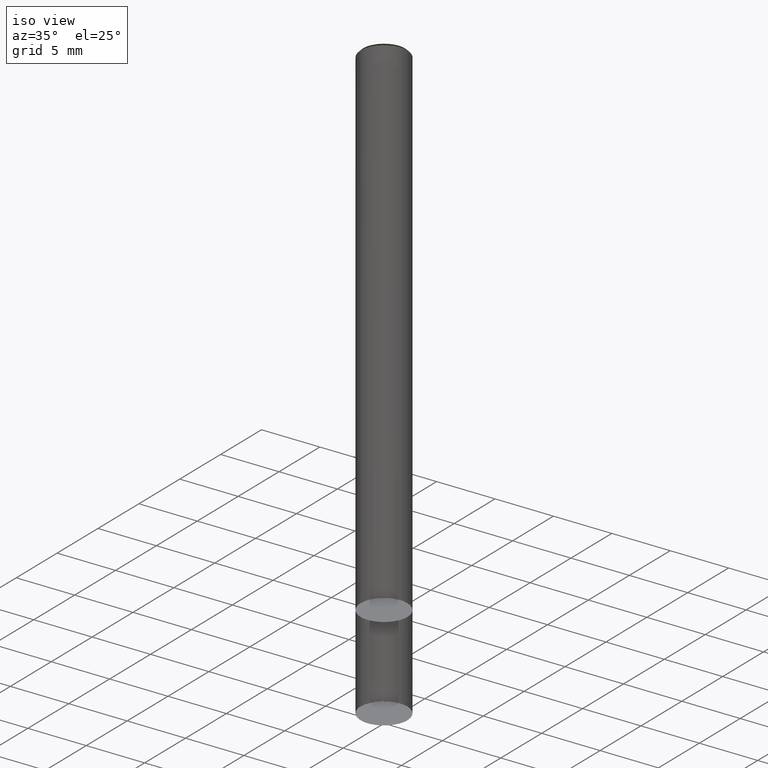
[diagram: clean part render]
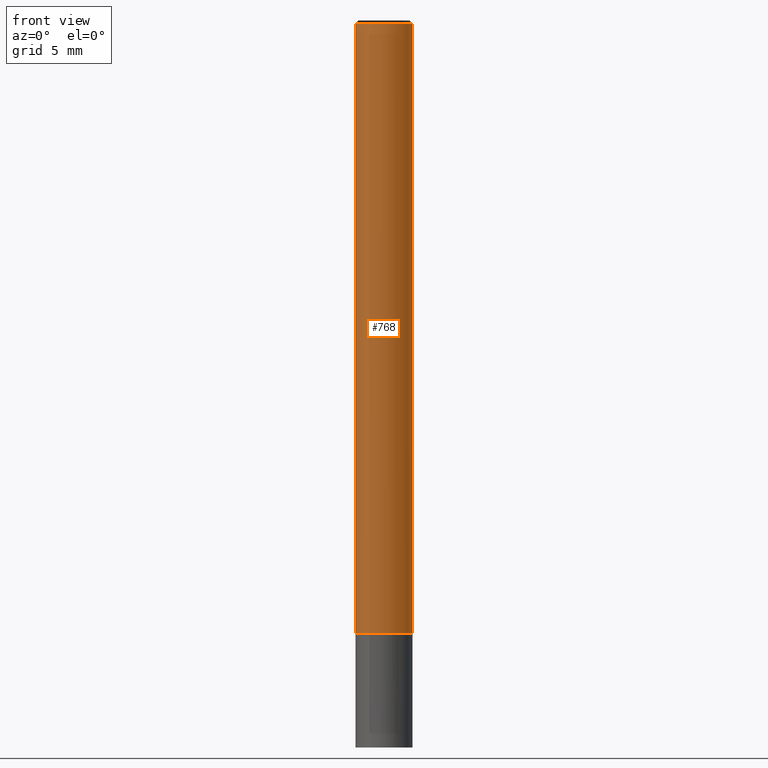
[diagram: tour spotlight — one face highlighted and labeled with its STEP entity id]
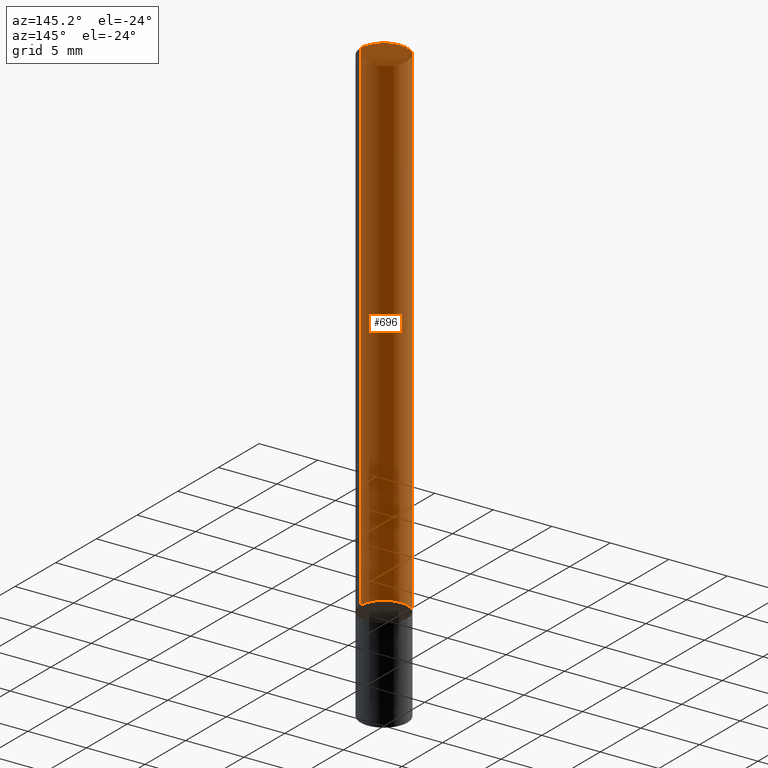
[diagram: tour spotlight — one face highlighted and labeled with its STEP entity id]
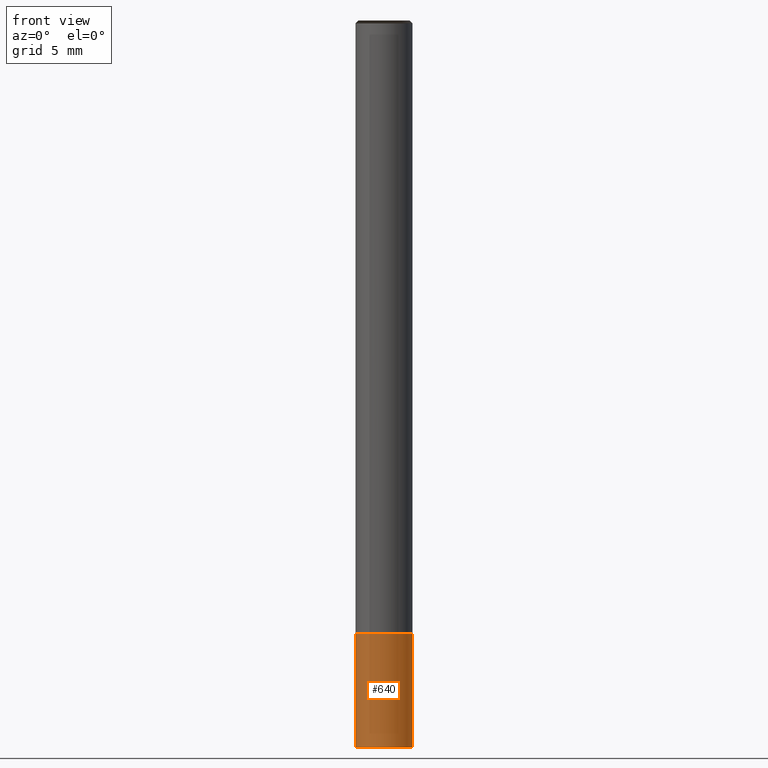
[diagram: tour spotlight — one face highlighted and labeled with its STEP entity id]
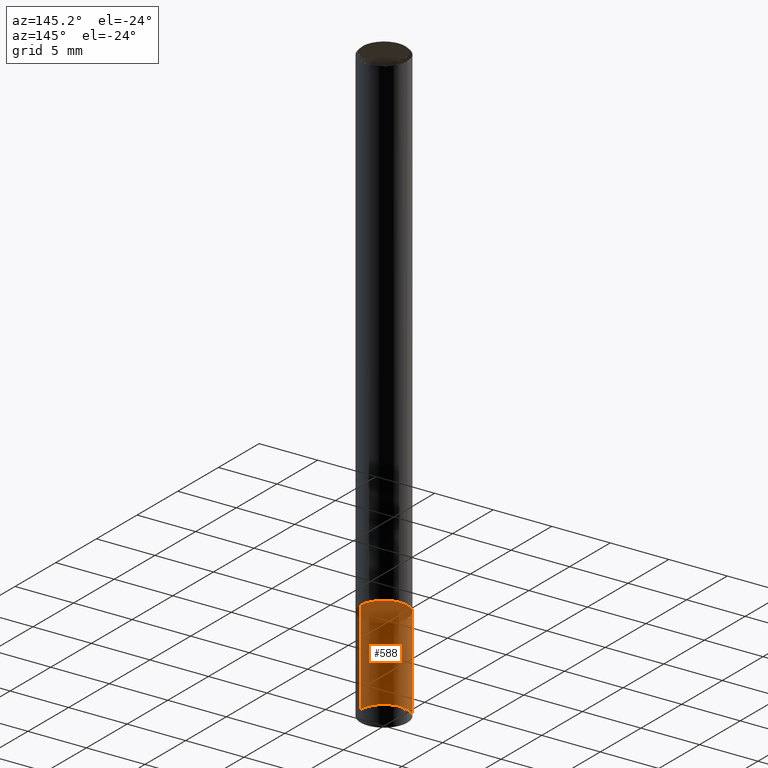
[diagram: tour spotlight — one face highlighted and labeled with its STEP entity id]
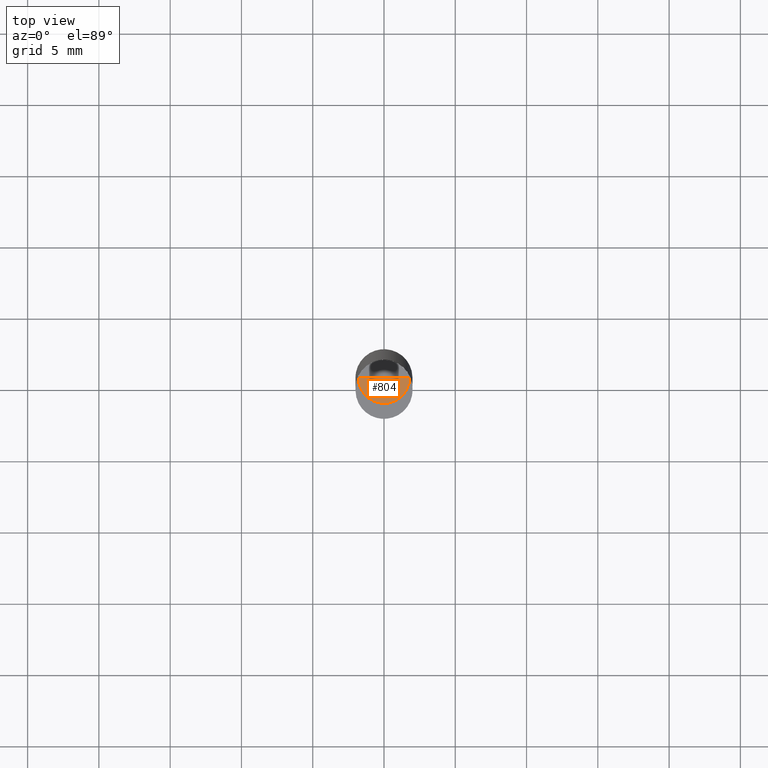
[diagram: tour spotlight — one face highlighted and labeled with its STEP entity id]
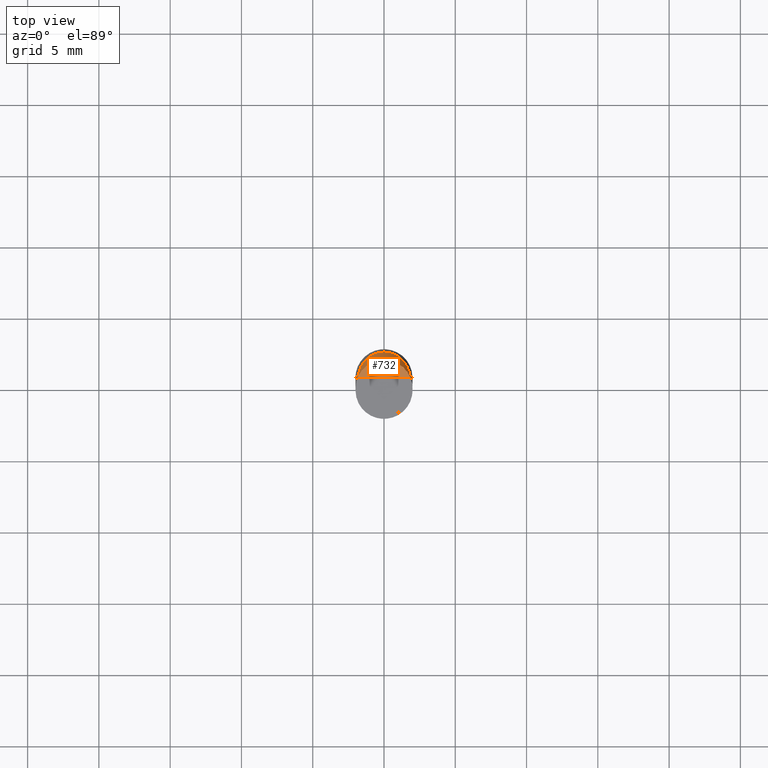
[diagram: tour spotlight — one face highlighted and labeled with its STEP entity id]
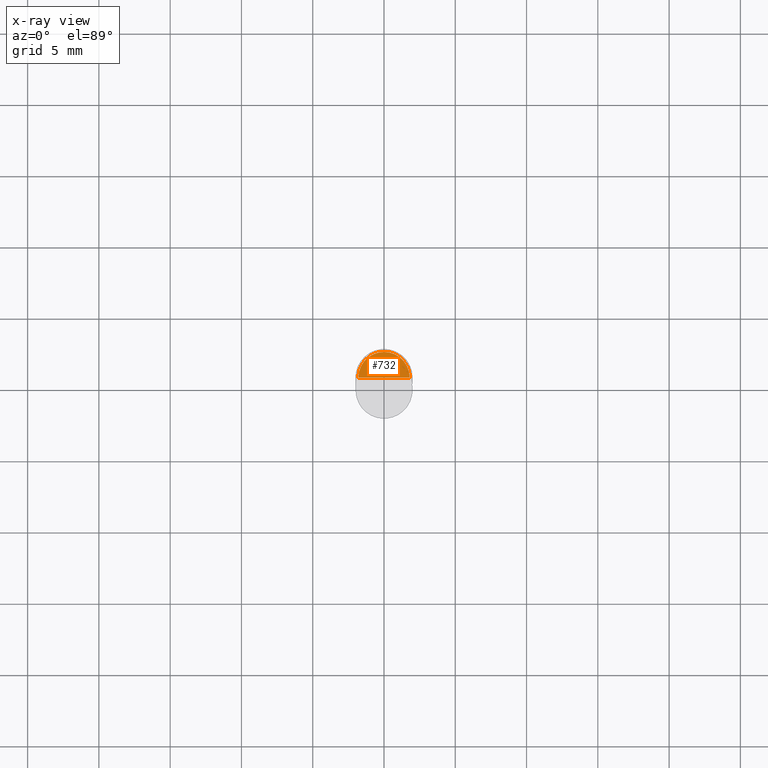
[diagram: x-ray of the same camera — body ghosted, this tour face saturated]
A machine part: a face-by-face anatomy tour. The part has 14 B-rep faces; the first image is the clean iso view, then the 6 largest visible faces are spotlighted one at a time (largest first), each with its STEP entity span.

Face 1 — front view, entity #768. In plain terms, the highlighted face is a freeform B-spline surface patch.
Definition (entity closure, byte-faithful):
#519=CARTESIAN_POINT('',(2.0,0.0,0.0));
#523=CARTESIAN_POINT('',(-2.0,0.0,0.0));
#527=CARTESIAN_POINT('',(-2.0,-2.0,0.0));
#528=CARTESIAN_POINT('',(0.0,-2.0,0.0));
#529=CARTESIAN_POINT('',(2.0,-2.0,0.0));
#530=CARTESIAN_POINT('',(2.0,0.0,42.8));
#534=CARTESIAN_POINT('',(-2.0,0.0,42.8));
#541=CARTESIAN_POINT('',(-2.0,-2.0,42.8));
#542=CARTESIAN_POINT('',(0.0,-2.0,42.8));
#543=CARTESIAN_POINT('',(2.0,-2.0,42.8));
#749=(
BOUNDED_SURFACE()
B_SPLINE_SURFACE(1,2,(
(#523,#527,#528,#529,#519),
(#534,#541,#542,#543,#530)
), .UNSPECIFIED.,.F.,.F.,.F.)
B_SPLINE_SURFACE_WITH_KNOTS((2,2),(3,2,3),(
0.0,1.0),(
0.0,0.5,1.0), .UNSPECIFIED.)
GEOMETRIC_REPRESENTATION_ITEM()
RATIONAL_B_SPLINE_SURFACE(((1.0,0.707106781187,1.0,0.707106781187,1.0),
(1.0,0.707106781187,1.0,0.707106781187,1.0)
))
REPRESENTATION_ITEM('')
SURFACE()
);
#750=(
BOUNDED_CURVE()
B_SPLINE_CURVE(2,(#519,#529,#528,#527,#523),.UNSPECIFIED.,.F.,.F.)
B_SPLINE_CURVE_WITH_KNOTS((3,2,3),
(0.0,0.5,1.0),.UNSPECIFIED.)
CURVE()
GEOMETRIC_REPRESENTATION_ITEM()
RATIONAL_B_SPLINE_CURVE((1.0,0.707106781187,1.0,0.707106781187,1.0))
REPRESENTATION_ITEM('')
);
#751=(
BOUNDED_CURVE()
B_SPLINE_CURVE(1,(#523,#534),.UNSPECIFIED.,.F.,.F.)
B_SPLINE_CURVE_WITH_KNOTS((2,2),
(0.0,1.0),.UNSPECIFIED.)
CURVE()
GEOMETRIC_REPRESENTATION_ITEM()
RATIONAL_B_SPLINE_CURVE((1.0,1.0))
REPRESENTATION_ITEM('')
);
#752=(
BOUNDED_CURVE()
B_SPLINE_CURVE(2,(#534,#541,#542,#543,#530),.UNSPECIFIED.,.F.,.F.)
B_SPLINE_CURVE_WITH_KNOTS((3,2,3),
(0.0,0.5,1.0),.UNSPECIFIED.)
CURVE()
GEOMETRIC_REPRESENTATION_ITEM()
RATIONAL_B_SPLINE_CURVE((1.0,0.707106781187,1.0,0.707106781187,1.0))
REPRESENTATION_ITEM('')
);
#753=(
BOUNDED_CURVE()
B_SPLINE_CURVE(1,(#530,#519),.UNSPECIFIED.,.F.,.F.)
B_SPLINE_CURVE_WITH_KNOTS((2,2),
(0.0,1.0),.UNSPECIFIED.)
CURVE()
GEOMETRIC_REPRESENTATION_ITEM()
RATIONAL_B_SPLINE_CURVE((1.0,1.0))
REPRESENTATION_ITEM('')
);
#754=VERTEX_POINT('',#519);
#755=VERTEX_POINT('',#523);
#756=VERTEX_POINT('',#530);
#757=VERTEX_POINT('',#534);
#758=EDGE_CURVE('',#754,#755,#750,.T.);
#759=EDGE_CURVE('',#755,#757,#751,.T.);
#760=EDGE_CURVE('',#757,#756,#752,.T.);
#761=EDGE_CURVE('',#756,#754,#753,.T.);
#762=ORIENTED_EDGE('',*,*,#758,.T.);
#763=ORIENTED_EDGE('',*,*,#759,.T.);
#764=ORIENTED_EDGE('',*,*,#760,.T.);
#765=ORIENTED_EDGE('',*,*,#761,.T.);
#766=EDGE_LOOP('',(#762,#763,#764,#765));
#767=FACE_OUTER_BOUND('',#766,.T.);
#768=ADVANCED_FACE('',(#767),#749,.T.);

Face 2 — auxiliary view, entity #696. In plain terms, the highlighted face is a freeform B-spline surface patch.
Definition (entity closure, byte-faithful):
#519=CARTESIAN_POINT('',(2.0,0.0,0.0));
#520=CARTESIAN_POINT('',(2.0,2.0,0.0));
#521=CARTESIAN_POINT('',(0.0,2.0,0.0));
#522=CARTESIAN_POINT('',(-2.0,2.0,0.0));
#523=CARTESIAN_POINT('',(-2.0,0.0,0.0));
#530=CARTESIAN_POINT('',(2.0,0.0,42.8));
#531=CARTESIAN_POINT('',(2.0,2.0,42.8));
#532=CARTESIAN_POINT('',(0.0,2.0,42.8));
#533=CARTESIAN_POINT('',(-2.0,2.0,42.8));
#534=CARTESIAN_POINT('',(-2.0,0.0,42.8));
#677=(
BOUNDED_SURFACE()
B_SPLINE_SURFACE(1,2,(
(#519,#520,#521,#522,#523),
(#530,#531,#532,#533,#534)
), .UNSPECIFIED.,.F.,.F.,.F.)
B_SPLINE_SURFACE_WITH_KNOTS((2,2),(3,2,3),(
0.0,1.0),(
0.0,0.5,1.0), .UNSPECIFIED.)
GEOMETRIC_REPRESENTATION_ITEM()
RATIONAL_B_SPLINE_SURFACE(((1.0,0.707106781187,1.0,0.707106781187,1.0),
(1.0,0.707106781187,1.0,0.707106781187,1.0)
))
REPRESENTATION_ITEM('')
SURFACE()
);
#678=(
BOUNDED_CURVE()
B_SPLINE_CURVE(2,(#523,#522,#521,#520,#519),.UNSPECIFIED.,.F.,.F.)
B_SPLINE_CURVE_WITH_KNOTS((3,2,3),
(0.0,0.5,1.0),.UNSPECIFIED.)
CURVE()
GEOMETRIC_REPRESENTATION_ITEM()
RATIONAL_B_SPLINE_CURVE((1.0,0.707106781187,1.0,0.707106781187,1.0))
REPRESENTATION_ITEM('')
);
#679=(
BOUNDED_CURVE()
B_SPLINE_CURVE(1,(#519,#530),.UNSPECIFIED.,.F.,.F.)
B_SPLINE_CURVE_WITH_KNOTS((2,2),
(0.0,1.0),.UNSPECIFIED.)
CURVE()
GEOMETRIC_REPRESENTATION_ITEM()
RATIONAL_B_SPLINE_CURVE((1.0,1.0))
REPRESENTATION_ITEM('')
);
#680=(
BOUNDED_CURVE()
B_SPLINE_CURVE(2,(#530,#531,#532,#533,#534),.UNSPECIFIED.,.F.,.F.)
B_SPLINE_CURVE_WITH_KNOTS((3,2,3),
(0.0,0.5,1.0),.UNSPECIFIED.)
CURVE()
GEOMETRIC_REPRESENTATION_ITEM()
RATIONAL_B_SPLINE_CURVE((1.0,0.707106781187,1.0,0.707106781187,1.0))
REPRESENTATION_ITEM('')
);
#681=(
BOUNDED_CURVE()
B_SPLINE_CURVE(1,(#534,#523),.UNSPECIFIED.,.F.,.F.)
B_SPLINE_CURVE_WITH_KNOTS((2,2),
(0.0,1.0),.UNSPECIFIED.)
CURVE()
GEOMETRIC_REPRESENTATION_ITEM()
RATIONAL_B_SPLINE_CURVE((1.0,1.0))
REPRESENTATION_ITEM('')
);
#682=VERTEX_POINT('',#519);
#683=VERTEX_POINT('',#523);
#684=VERTEX_POINT('',#530);
#685=VERTEX_POINT('',#534);
#686=EDGE_CURVE('',#683,#682,#678,.T.);
#687=EDGE_CURVE('',#682,#684,#679,.T.);
#688=EDGE_CURVE('',#684,#685,#680,.T.);
#689=EDGE_CURVE('',#685,#683,#681,.T.);
#690=ORIENTED_EDGE('',*,*,#686,.T.);
#691=ORIENTED_EDGE('',*,*,#687,.T.);
#692=ORIENTED_EDGE('',*,*,#688,.T.);
#693=ORIENTED_EDGE('',*,*,#689,.T.);
#694=EDGE_LOOP('',(#690,#691,#692,#693));
#695=FACE_OUTER_BOUND('',#694,.T.);
#696=ADVANCED_FACE('',(#695),#677,.T.);

Face 3 — front view, entity #640. In plain terms, the highlighted face is a freeform B-spline surface patch.
Definition (entity closure, byte-faithful):
#109=CARTESIAN_POINT('',(0.0,-2.0,-8.0));
#514=CARTESIAN_POINT('',(2.0,0.0,-8.0));
#518=CARTESIAN_POINT('',(-2.0,0.0,-8.0));
#519=CARTESIAN_POINT('',(2.0,0.0,0.0));
#523=CARTESIAN_POINT('',(-2.0,0.0,0.0));
#525=CARTESIAN_POINT('',(-2.0,-2.0,-8.0));
#526=CARTESIAN_POINT('',(2.0,-2.0,-8.0));
#527=CARTESIAN_POINT('',(-2.0,-2.0,0.0));
#528=CARTESIAN_POINT('',(0.0,-2.0,0.0));
#529=CARTESIAN_POINT('',(2.0,-2.0,0.0));
#621=(
BOUNDED_SURFACE()
B_SPLINE_SURFACE(1,2,(
(#518,#525,#109,#526,#514),
(#523,#527,#528,#529,#519)
), .UNSPECIFIED.,.F.,.F.,.F.)
B_SPLINE_SURFACE_WITH_KNOTS((2,2),(3,2,3),(
0.0,1.0),(
0.0,0.5,1.0), .UNSPECIFIED.)
GEOMETRIC_REPRESENTATION_ITEM()
RATIONAL_B_SPLINE_SURFACE(((1.0,0.707106781187,1.0,0.707106781187,1.0),
(1.0,0.707106781187,1.0,0.707106781187,1.0)
))
REPRESENTATION_ITEM('')
SURFACE()
);
#622=(
BOUNDED_CURVE()
B_SPLINE_CURVE(2,(#514,#526,#109,#525,#518),.UNSPECIFIED.,.F.,.F.)
B_SPLINE_CURVE_WITH_KNOTS((3,2,3),
(0.0,0.5,1.0),.UNSPECIFIED.)
CURVE()
GEOMETRIC_REPRESENTATION_ITEM()
RATIONAL_B_SPLINE_CURVE((1.0,0.707106781187,1.0,0.707106781187,1.0))
REPRESENTATION_ITEM('')
);
#623=(
BOUNDED_CURVE()
B_SPLINE_CURVE(1,(#518,#523),.UNSPECIFIED.,.F.,.F.)
B_SPLINE_CURVE_WITH_KNOTS((2,2),
(0.0,1.0),.UNSPECIFIED.)
CURVE()
GEOMETRIC_REPRESENTATION_ITEM()
RATIONAL_B_SPLINE_CURVE((1.0,1.0))
REPRESENTATION_ITEM('')
);
#624=(
BOUNDED_CURVE()
B_SPLINE_CURVE(2,(#523,#527,#528,#529,#519),.UNSPECIFIED.,.F.,.F.)
B_SPLINE_CURVE_WITH_KNOTS((3,2,3),
(0.0,0.5,1.0),.UNSPECIFIED.)
CURVE()
GEOMETRIC_REPRESENTATION_ITEM()
RATIONAL_B_SPLINE_CURVE((1.0,0.707106781187,1.0,0.707106781187,1.0))
REPRESENTATION_ITEM('')
);
#625=(
BOUNDED_CURVE()
B_SPLINE_CURVE(1,(#519,#514),.UNSPECIFIED.,.F.,.F.)
B_SPLINE_CURVE_WITH_KNOTS((2,2),
(0.0,1.0),.UNSPECIFIED.)
CURVE()
GEOMETRIC_REPRESENTATION_ITEM()
RATIONAL_B_SPLINE_CURVE((1.0,1.0))
REPRESENTATION_ITEM('')
);
#626=VERTEX_POINT('',#514);
#627=VERTEX_POINT('',#518);
#628=VERTEX_POINT('',#519);
#629=VERTEX_POINT('',#523);
#630=EDGE_CURVE('',#626,#627,#622,.T.);
#631=EDGE_CURVE('',#627,#629,#623,.T.);
#632=EDGE_CURVE('',#629,#628,#624,.T.);
#633=EDGE_CURVE('',#628,#626,#625,.T.);
#634=ORIENTED_EDGE('',*,*,#630,.T.);
#635=ORIENTED_EDGE('',*,*,#631,.T.);
#636=ORIENTED_EDGE('',*,*,#632,.T.);
#637=ORIENTED_EDGE('',*,*,#633,.T.);
#638=EDGE_LOOP('',(#634,#635,#636,#637));
#639=FACE_OUTER_BOUND('',#638,.T.);
#640=ADVANCED_FACE('',(#639),#621,.T.);

Face 4 — auxiliary view, entity #588. In plain terms, the highlighted face is a freeform B-spline surface patch.
Definition (entity closure, byte-faithful):
#514=CARTESIAN_POINT('',(2.0,0.0,-8.0));
#515=CARTESIAN_POINT('',(2.0,2.0,-8.0));
#516=CARTESIAN_POINT('',(0.0,2.0,-8.0));
#517=CARTESIAN_POINT('',(-2.0,2.0,-8.0));
#518=CARTESIAN_POINT('',(-2.0,0.0,-8.0));
#519=CARTESIAN_POINT('',(2.0,0.0,0.0));
#520=CARTESIAN_POINT('',(2.0,2.0,0.0));
#521=CARTESIAN_POINT('',(0.0,2.0,0.0));
#522=CARTESIAN_POINT('',(-2.0,2.0,0.0));
#523=CARTESIAN_POINT('',(-2.0,0.0,0.0));
#569=(
BOUNDED_SURFACE()
B_SPLINE_SURFACE(1,2,(
(#514,#515,#516,#517,#518),
(#519,#520,#521,#522,#523)
), .UNSPECIFIED.,.F.,.F.,.F.)
B_SPLINE_SURFACE_WITH_KNOTS((2,2),(3,2,3),(
0.0,1.0),(
0.0,0.5,1.0), .UNSPECIFIED.)
GEOMETRIC_REPRESENTATION_ITEM()
RATIONAL_B_SPLINE_SURFACE(((1.0,0.707106781187,1.0,0.707106781187,1.0),
(1.0,0.707106781187,1.0,0.707106781187,1.0)
))
REPRESENTATION_ITEM('')
SURFACE()
);
#570=(
BOUNDED_CURVE()
B_SPLINE_CURVE(2,(#518,#517,#516,#515,#514),.UNSPECIFIED.,.F.,.F.)
B_SPLINE_CURVE_WITH_KNOTS((3,2,3),
(0.0,0.5,1.0),.UNSPECIFIED.)
CURVE()
GEOMETRIC_REPRESENTATION_ITEM()
RATIONAL_B_SPLINE_CURVE((1.0,0.707106781187,1.0,0.707106781187,1.0))
REPRESENTATION_ITEM('')
);
#571=(
BOUNDED_CURVE()
B_SPLINE_CURVE(1,(#514,#519),.UNSPECIFIED.,.F.,.F.)
B_SPLINE_CURVE_WITH_KNOTS((2,2),
(0.0,1.0),.UNSPECIFIED.)
CURVE()
GEOMETRIC_REPRESENTATION_ITEM()
RATIONAL_B_SPLINE_CURVE((1.0,1.0))
REPRESENTATION_ITEM('')
);
#572=(
BOUNDED_CURVE()
B_SPLINE_CURVE(2,(#519,#520,#521,#522,#523),.UNSPECIFIED.,.F.,.F.)
B_SPLINE_CURVE_WITH_KNOTS((3,2,3),
(0.0,0.5,1.0),.UNSPECIFIED.)
CURVE()
GEOMETRIC_REPRESENTATION_ITEM()
RATIONAL_B_SPLINE_CURVE((1.0,0.707106781187,1.0,0.707106781187,1.0))
REPRESENTATION_ITEM('')
);
#573=(
BOUNDED_CURVE()
B_SPLINE_CURVE(1,(#523,#518),.UNSPECIFIED.,.F.,.F.)
B_SPLINE_CURVE_WITH_KNOTS((2,2),
(0.0,1.0),.UNSPECIFIED.)
CURVE()
GEOMETRIC_REPRESENTATION_ITEM()
RATIONAL_B_SPLINE_CURVE((1.0,1.0))
REPRESENTATION_ITEM('')
);
#574=VERTEX_POINT('',#514);
#575=VERTEX_POINT('',#518);
#576=VERTEX_POINT('',#519);
#577=VERTEX_POINT('',#523);
#578=EDGE_CURVE('',#575,#574,#570,.T.);
#579=EDGE_CURVE('',#574,#576,#571,.T.);
#580=EDGE_CURVE('',#576,#577,#572,.T.);
#581=EDGE_CURVE('',#577,#575,#573,.T.);
#582=ORIENTED_EDGE('',*,*,#578,.T.);
#583=ORIENTED_EDGE('',*,*,#579,.T.);
#584=ORIENTED_EDGE('',*,*,#580,.T.);
#585=ORIENTED_EDGE('',*,*,#581,.T.);
#586=EDGE_LOOP('',(#582,#583,#584,#585));
#587=FACE_OUTER_BOUND('',#586,.T.);
#588=ADVANCED_FACE('',(#587),#569,.T.);

Face 5 — top view, entity #804. In plain terms, the highlighted face is a freeform B-spline surface patch.
Definition (entity closure, byte-faithful):
#535=CARTESIAN_POINT('',(1.8,0.0,43.0));
#539=CARTESIAN_POINT('',(-1.8,0.0,43.0));
#540=CARTESIAN_POINT('',(0.0,0.0,43.0));
#544=CARTESIAN_POINT('',(-1.8,-1.8,43.0));
#545=CARTESIAN_POINT('',(0.0,-1.8,43.0));
#546=CARTESIAN_POINT('',(1.8,-1.8,43.0));
#789=(
BOUNDED_SURFACE()
B_SPLINE_SURFACE(1,2,(
(#539,#544,#545,#546,#535),
(#540,#540,#540,#540,#540)
), .UNSPECIFIED.,.F.,.F.,.F.)
B_SPLINE_SURFACE_WITH_KNOTS((2,2),(3,2,3),(
0.0,1.0),(
0.0,0.5,1.0), .UNSPECIFIED.)
GEOMETRIC_REPRESENTATION_ITEM()
RATIONAL_B_SPLINE_SURFACE(((1.0,0.707106781187,1.0,0.707106781187,1.0),
(1.0,0.707106781187,1.0,0.707106781187,1.0)
))
REPRESENTATION_ITEM('')
SURFACE()
);
#790=(
BOUNDED_CURVE()
B_SPLINE_CURVE(2,(#535,#546,#545,#544,#539),.UNSPECIFIED.,.F.,.F.)
B_SPLINE_CURVE_WITH_KNOTS((3,2,3),
(0.0,0.5,1.0),.UNSPECIFIED.)
CURVE()
GEOMETRIC_REPRESENTATION_ITEM()
RATIONAL_B_SPLINE_CURVE((1.0,0.707106781187,1.0,0.707106781187,1.0))
REPRESENTATION_ITEM('')
);
#791=(
BOUNDED_CURVE()
B_SPLINE_CURVE(1,(#539,#540),.UNSPECIFIED.,.F.,.F.)
B_SPLINE_CURVE_WITH_KNOTS((2,2),
(0.0,1.0),.UNSPECIFIED.)
CURVE()
GEOMETRIC_REPRESENTATION_ITEM()
RATIONAL_B_SPLINE_CURVE((1.0,1.0))
REPRESENTATION_ITEM('')
);
#792=(
BOUNDED_CURVE()
B_SPLINE_CURVE(1,(#540,#535),.UNSPECIFIED.,.F.,.F.)
B_SPLINE_CURVE_WITH_KNOTS((2,2),
(0.0,1.0),.UNSPECIFIED.)
CURVE()
GEOMETRIC_REPRESENTATION_ITEM()
RATIONAL_B_SPLINE_CURVE((1.0,1.0))
REPRESENTATION_ITEM('')
);
#793=VERTEX_POINT('',#535);
#794=VERTEX_POINT('',#539);
#795=VERTEX_POINT('',#540);
#796=EDGE_CURVE('',#793,#794,#790,.T.);
#797=EDGE_CURVE('',#794,#795,#791,.T.);
#798=EDGE_CURVE('',#795,#793,#792,.T.);
#799=ORIENTED_EDGE('',*,*,#796,.T.);
#800=ORIENTED_EDGE('',*,*,#797,.T.);
#801=ORIENTED_EDGE('',*,*,#798,.T.);
#802=EDGE_LOOP('',(#799,#800,#801));
#803=FACE_OUTER_BOUND('',#802,.T.);
#804=ADVANCED_FACE('',(#803),#789,.T.);

Face 6 — top view, entity #732. An x-ray twin of the same camera follows (body ghosted, this face saturated) — the face is partly hidden behind the body. In plain terms, the highlighted face is a freeform B-spline surface patch.
Definition (entity closure, byte-faithful):
#535=CARTESIAN_POINT('',(1.8,0.0,43.0));
#536=CARTESIAN_POINT('',(1.8,1.8,43.0));
#537=CARTESIAN_POINT('',(0.0,1.8,43.0));
#538=CARTESIAN_POINT('',(-1.8,1.8,43.0));
#539=CARTESIAN_POINT('',(-1.8,0.0,43.0));
#540=CARTESIAN_POINT('',(0.0,0.0,43.0));
#717=(
BOUNDED_SURFACE()
B_SPLINE_SURFACE(1,2,(
(#535,#536,#537,#538,#539),
(#540,#540,#540,#540,#540)
), .UNSPECIFIED.,.F.,.F.,.F.)
B_SPLINE_SURFACE_WITH_KNOTS((2,2),(3,2,3),(
0.0,1.0),(
0.0,0.5,1.0), .UNSPECIFIED.)
GEOMETRIC_REPRESENTATION_ITEM()
RATIONAL_B_SPLINE_SURFACE(((1.0,0.707106781187,1.0,0.707106781187,1.0),
(1.0,0.707106781187,1.0,0.707106781187,1.0)
))
REPRESENTATION_ITEM('')
SURFACE()
);
#718=(
BOUNDED_CURVE()
B_SPLINE_CURVE(2,(#539,#538,#537,#536,#535),.UNSPECIFIED.,.F.,.F.)
B_SPLINE_CURVE_WITH_KNOTS((3,2,3),
(0.0,0.5,1.0),.UNSPECIFIED.)
CURVE()
GEOMETRIC_REPRESENTATION_ITEM()
RATIONAL_B_SPLINE_CURVE((1.0,0.707106781187,1.0,0.707106781187,1.0))
REPRESENTATION_ITEM('')
);
#719=(
BOUNDED_CURVE()
B_SPLINE_CURVE(1,(#535,#540),.UNSPECIFIED.,.F.,.F.)
B_SPLINE_CURVE_WITH_KNOTS((2,2),
(0.0,1.0),.UNSPECIFIED.)
CURVE()
GEOMETRIC_REPRESENTATION_ITEM()
RATIONAL_B_SPLINE_CURVE((1.0,1.0))
REPRESENTATION_ITEM('')
);
#720=(
BOUNDED_CURVE()
B_SPLINE_CURVE(1,(#540,#539),.UNSPECIFIED.,.F.,.F.)
B_SPLINE_CURVE_WITH_KNOTS((2,2),
(0.0,1.0),.UNSPECIFIED.)
CURVE()
GEOMETRIC_REPRESENTATION_ITEM()
RATIONAL_B_SPLINE_CURVE((1.0,1.0))
REPRESENTATION_ITEM('')
);
#721=VERTEX_POINT('',#535);
#722=VERTEX_POINT('',#539);
#723=VERTEX_POINT('',#540);
#724=EDGE_CURVE('',#722,#721,#718,.T.);
#725=EDGE_CURVE('',#721,#723,#719,.T.);
#726=EDGE_CURVE('',#723,#722,#720,.T.);
#727=ORIENTED_EDGE('',*,*,#724,.T.);
#728=ORIENTED_EDGE('',*,*,#725,.T.);
#729=ORIENTED_EDGE('',*,*,#726,.T.);
#730=EDGE_LOOP('',(#727,#728,#729));
#731=FACE_OUTER_BOUND('',#730,.T.);
#732=ADVANCED_FACE('',(#731),#717,.T.);